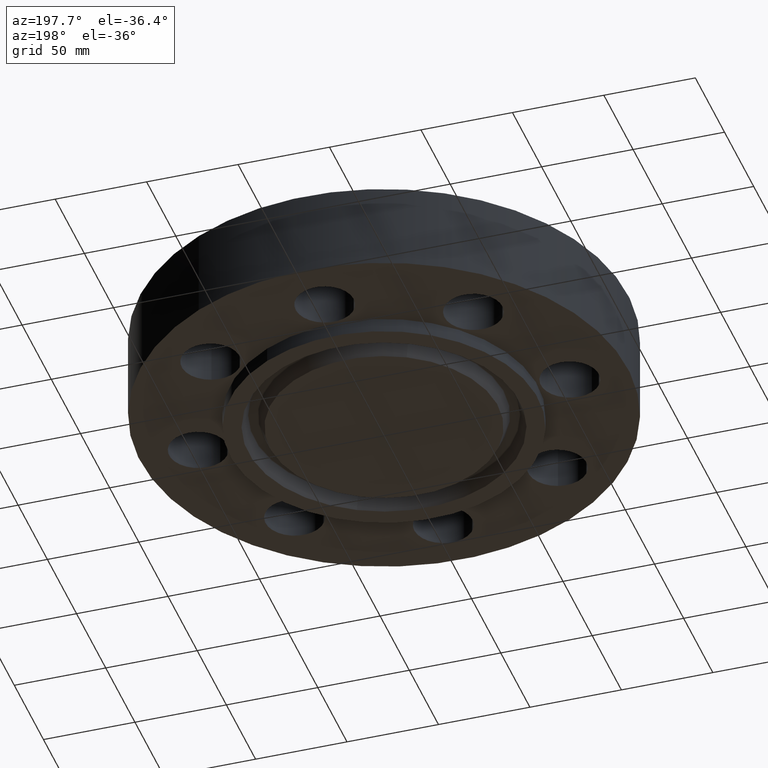
[diagram: clean part render]
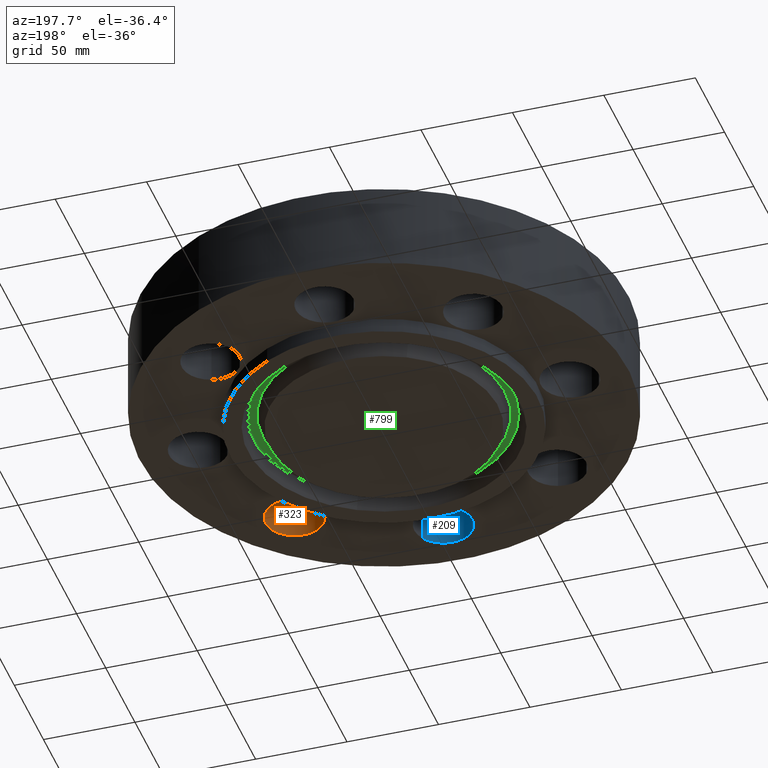
[diagram: same view with three faces highlighted in distinct colors, each labeled with its STEP entity id]
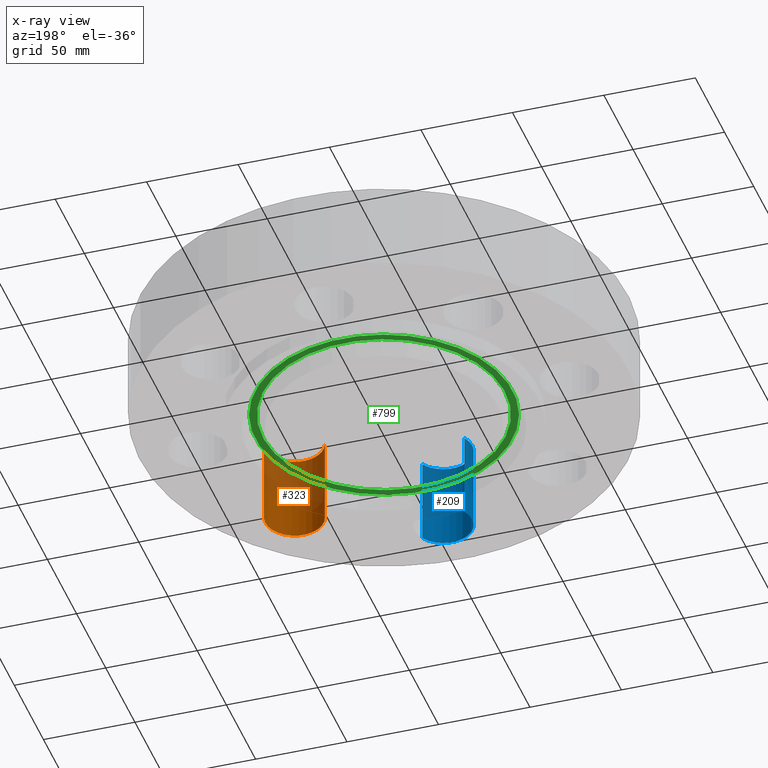
[diagram: x-ray of the same camera — body ghosted, the three highlighted faces saturated]
A machine part, auxiliary view with three faces highlighted in distinct colors.
The next image is the same camera in x-ray (body ghosted, the three faces saturated) — at least one of them is partly hidden behind the body in this view.
Their STEP definitions:

[orange] entity #323 — the highlighted cylindrical surface (edge-blend (fillet) strip) has radius 15.875 mm, axis along (-0, 0, -1).
#270=AXIS2_PLACEMENT_3D('Cylinder Axis2P3D',#267,#268,#269) ;
#309=AXIS2_PLACEMENT_3D('Circle Axis2P3D',#307,#308,$) ;
#314=AXIS2_PLACEMENT_3D('Circle Axis2P3D',#312,#313,$) ;
#267=CARTESIAN_POINT('Axis2P3D Location',(2.82842712476,-2.82842712476,1.87606299213)) ;
#272=CARTESIAN_POINT('Line Origine',(2.22870860601,-3.00438933172,0.940000000004)) ;
#276=CARTESIAN_POINT('Vertex',(2.22870860601,-3.00438933172,0.)) ;
#278=CARTESIAN_POINT('Vertex',(2.22870860601,-3.00438933172,1.88000000001)) ;
#285=CARTESIAN_POINT('Vertex',(3.4281456435,-2.65246491779,0.)) ;
#288=CARTESIAN_POINT('Line Origine',(3.4281456435,-2.65246491779,0.940000000004)) ;
#292=CARTESIAN_POINT('Vertex',(3.4281456435,-2.65246491779,1.88000000001)) ;
#307=CARTESIAN_POINT('Axis2P3D Location',(2.82842712476,-2.82842712476,0.)) ;
#312=CARTESIAN_POINT('Axis2P3D Location',(2.82842712476,-2.82842712476,1.88000000001)) ;
#268=DIRECTION('Axis2P3D Direction',(-0.,0.,-0.0393700787402)) ;
#269=DIRECTION('Axis2P3D XDirection',(0.0377775444876,0.0110842335096,-0.)) ;
#273=DIRECTION('Vector Direction',(0.,0.,-0.0393700787402)) ;
#289=DIRECTION('Vector Direction',(0.,0.,-0.0393700787402)) ;
#308=DIRECTION('Axis2P3D Direction',(-0.,0.,-0.0393700787402)) ;
#313=DIRECTION('Axis2P3D Direction',(-0.,0.,-0.0393700787402)) ;
#274=VECTOR('Line Direction',#273,0.0393700787402) ;
#290=VECTOR('Line Direction',#289,0.0393700787402) ;
#318=ORIENTED_EDGE('',*,*,#294,.F.) ;
#319=ORIENTED_EDGE('',*,*,#311,.T.) ;
#320=ORIENTED_EDGE('',*,*,#280,.T.) ;
#321=ORIENTED_EDGE('',*,*,#316,.F.) ;
#323=ADVANCED_FACE('PartBody',(#322),#271,.F.) ;
#310=CIRCLE('generated circle',#309,0.625000000002) ;
#315=CIRCLE('generated circle',#314,0.625000000002) ;
#271=CYLINDRICAL_SURFACE('generated cylinder',#270,0.625000000002) ;
#280=EDGE_CURVE('',#277,#279,#275,.F.) ;
#294=EDGE_CURVE('',#286,#293,#291,.F.) ;
#311=EDGE_CURVE('',#286,#277,#310,.T.) ;
#316=EDGE_CURVE('',#293,#279,#315,.T.) ;
#317=EDGE_LOOP('',(#318,#319,#320,#321)) ;
#322=FACE_OUTER_BOUND('',#317,.T.) ;
#275=LINE('Line',#272,#274) ;
#291=LINE('Line',#288,#290) ;
#277=VERTEX_POINT('',#276) ;
#279=VERTEX_POINT('',#278) ;
#286=VERTEX_POINT('',#285) ;
#293=VERTEX_POINT('',#292) ;

[blue] entity #209 — the highlighted cylindrical surface (edge-blend (fillet) strip) has radius 15.875 mm, axis along (-0, 0, -1).
#156=AXIS2_PLACEMENT_3D('Cylinder Axis2P3D',#153,#154,#155) ;
#195=AXIS2_PLACEMENT_3D('Circle Axis2P3D',#193,#194,$) ;
#200=AXIS2_PLACEMENT_3D('Circle Axis2P3D',#198,#199,$) ;
#153=CARTESIAN_POINT('Axis2P3D Location',(4.89858719661E-016,-4.00000000002,1.87606299213)) ;
#158=CARTESIAN_POINT('Line Origine',(-0.548489101184,-3.70035903839,0.940000000004)) ;
#162=CARTESIAN_POINT('Vertex',(-0.548489101184,-3.70035903839,0.)) ;
#164=CARTESIAN_POINT('Vertex',(-0.548489101184,-3.70035903839,1.88000000001)) ;
#171=CARTESIAN_POINT('Vertex',(0.548489101184,-4.29964096164,0.)) ;
#174=CARTESIAN_POINT('Line Origine',(0.548489101184,-4.29964096164,0.940000000004)) ;
#178=CARTESIAN_POINT('Vertex',(0.548489101184,-4.29964096164,1.88000000001)) ;
#193=CARTESIAN_POINT('Axis2P3D Location',(4.89858719661E-016,-4.00000000002,0.)) ;
#198=CARTESIAN_POINT('Axis2P3D Location',(4.89858719661E-016,-4.00000000002,1.88000000001)) ;
#154=DIRECTION('Axis2P3D Direction',(-0.,0.,-0.0393700787402)) ;
#155=DIRECTION('Axis2P3D XDirection',(0.0345504945626,-0.0188750212049,-0.)) ;
#159=DIRECTION('Vector Direction',(0.,0.,-0.0393700787402)) ;
#175=DIRECTION('Vector Direction',(0.,0.,-0.0393700787402)) ;
#194=DIRECTION('Axis2P3D Direction',(-0.,0.,-0.0393700787402)) ;
#199=DIRECTION('Axis2P3D Direction',(-0.,0.,-0.0393700787402)) ;
#160=VECTOR('Line Direction',#159,0.0393700787402) ;
#176=VECTOR('Line Direction',#175,0.0393700787402) ;
#204=ORIENTED_EDGE('',*,*,#180,.F.) ;
#205=ORIENTED_EDGE('',*,*,#197,.T.) ;
#206=ORIENTED_EDGE('',*,*,#166,.T.) ;
#207=ORIENTED_EDGE('',*,*,#202,.F.) ;
#209=ADVANCED_FACE('PartBody',(#208),#157,.F.) ;
#196=CIRCLE('generated circle',#195,0.625000000003) ;
#201=CIRCLE('generated circle',#200,0.625000000003) ;
#157=CYLINDRICAL_SURFACE('generated cylinder',#156,0.625000000003) ;
#166=EDGE_CURVE('',#163,#165,#161,.F.) ;
#180=EDGE_CURVE('',#172,#179,#177,.F.) ;
#197=EDGE_CURVE('',#172,#163,#196,.T.) ;
#202=EDGE_CURVE('',#179,#165,#201,.T.) ;
#203=EDGE_LOOP('',(#204,#205,#206,#207)) ;
#208=FACE_OUTER_BOUND('',#203,.T.) ;
#161=LINE('Line',#158,#160) ;
#177=LINE('Line',#174,#176) ;
#163=VERTEX_POINT('',#162) ;
#165=VERTEX_POINT('',#164) ;
#172=VERTEX_POINT('',#171) ;
#179=VERTEX_POINT('',#178) ;

[green] entity #799 — the highlighted planar face has unit normal (0, 0, -1).
#498=AXIS2_PLACEMENT_3D('Plane Axis2P3D',#495,#496,#497) ;
#721=AXIS2_PLACEMENT_3D('Circle Axis2P3D',#719,#720,$) ;
#767=AXIS2_PLACEMENT_3D('Circle Axis2P3D',#765,#766,$) ;
#783=AXIS2_PLACEMENT_3D('Circle Axis2P3D',#781,#782,$) ;
#792=AXIS2_PLACEMENT_3D('Circle Axis2P3D',#790,#791,$) ;
#495=CARTESIAN_POINT('Axis2P3D Location',(0.,3.31250000001,0.)) ;
#716=CARTESIAN_POINT('Vertex',(-1.32734758062,2.42969344878,-9.17900925871E-017)) ;
#719=CARTESIAN_POINT('Axis2P3D Location',(0.,0.,-9.17900925871E-017)) ;
#723=CARTESIAN_POINT('Vertex',(1.32734758062,-2.42969344878,-9.17900925871E-017)) ;
#765=CARTESIAN_POINT('Axis2P3D Location',(0.,0.,-9.17900925871E-017)) ;
#781=CARTESIAN_POINT('Axis2P3D Location',(0.,0.,0.)) ;
#785=CARTESIAN_POINT('Vertex',(1.24956468938,-2.2873128214,1.18015833326E-016)) ;
#787=CARTESIAN_POINT('Vertex',(-1.24956468938,2.2873128214,1.18015833326E-016)) ;
#790=CARTESIAN_POINT('Axis2P3D Location',(0.,0.,0.)) ;
#496=DIRECTION('Axis2P3D Direction',(0.,0.,-0.0393700787402)) ;
#497=DIRECTION('Axis2P3D XDirection',(0.0393700787402,0.,0.)) ;
#720=DIRECTION('Axis2P3D Direction',(0.,0.,0.0393700787402)) ;
#766=DIRECTION('Axis2P3D Direction',(0.,0.,0.0393700787402)) ;
#782=DIRECTION('Axis2P3D Direction',(0.,0.,-0.0393700787402)) ;
#791=DIRECTION('Axis2P3D Direction',(0.,0.,-0.0393700787402)) ;
#778=ORIENTED_EDGE('',*,*,#725,.F.) ;
#779=ORIENTED_EDGE('',*,*,#769,.F.) ;
#796=ORIENTED_EDGE('',*,*,#789,.T.) ;
#797=ORIENTED_EDGE('',*,*,#794,.T.) ;
#798=FACE_BOUND('',#795,.T.) ;
#799=ADVANCED_FACE('PartBody',(#780,#798),#499,.T.) ;
#722=CIRCLE('generated circle',#721,2.76862093014) ;
#768=CIRCLE('generated circle',#767,2.76862093014) ;
#784=CIRCLE('generated circle',#783,2.60637906988) ;
#793=CIRCLE('generated circle',#792,2.60637906988) ;
#725=EDGE_CURVE('',#717,#724,#722,.T.) ;
#769=EDGE_CURVE('',#724,#717,#768,.T.) ;
#789=EDGE_CURVE('',#786,#788,#784,.F.) ;
#794=EDGE_CURVE('',#788,#786,#793,.F.) ;
#777=EDGE_LOOP('',(#778,#779)) ;
#795=EDGE_LOOP('',(#796,#797)) ;
#780=FACE_OUTER_BOUND('',#777,.T.) ;
#499=PLANE('',#498) ;
#717=VERTEX_POINT('',#716) ;
#724=VERTEX_POINT('',#723) ;
#786=VERTEX_POINT('',#785) ;
#788=VERTEX_POINT('',#787) ;